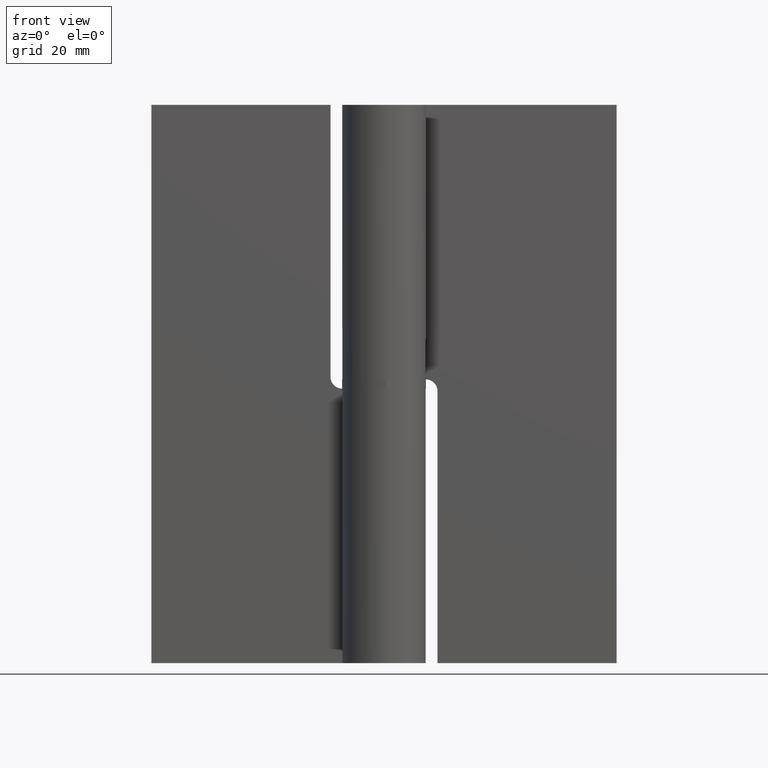
[diagram: clean part render]
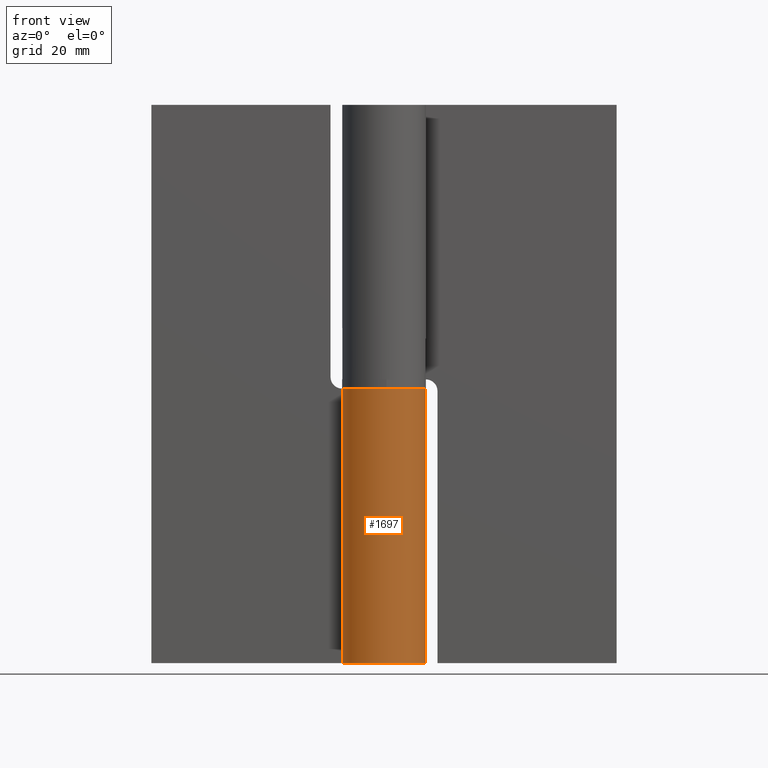
[diagram: same view with one face highlighted and labeled with its STEP entity id]
A machine part, front view. The second image highlights one B-rep face of the part: STEP entity #1697.
In plain terms, the highlighted face is a freeform B-spline surface patch.
Its self-contained STEP definition (entity closure, byte-faithful):
#1371=CARTESIAN_POINT('',(0.0,9.0,59.0));
#1372=VERTEX_POINT('',#1371);
#1413=CARTESIAN_POINT('',(-7.516481889820520,4.950000000000000,59.0));
#1414=VERTEX_POINT('',#1413);
#1420=CARTESIAN_POINT('',(0.0,9.0,59.0));
#1421=CARTESIAN_POINT('',(7.011576975452232,9.000000000000002,59.0));
#1422=CARTESIAN_POINT('',(8.726614701295084,2.201407698528492,59.0));
#1423=CARTESIAN_POINT('',(10.441652427137939,-4.597184602943016,59.0));
#1424=CARTESIAN_POINT('',(4.269074841227313,-7.923067587746552,59.0));
#1425=CARTESIAN_POINT('',(-1.903502744683314,-11.248950572550093,59.0));
#1426=CARTESIAN_POINT('',(-6.638175985501288,-6.077385917112224,59.0));
#1427=CARTESIAN_POINT('',(-11.372849226319255,-0.905821261674360,59.0));
#1428=CARTESIAN_POINT('',(-7.516481889820526,4.950000000000005,59.0));
#1436=(BOUNDED_CURVE()B_SPLINE_CURVE(2,(#1420,#1421,#1422,#1423,#1424,#1425,#1426,#1427,#1428),.UNSPECIFIED.,.F.,.U.)B_SPLINE_CURVE_WITH_KNOTS((3,2,2,2,3),(0.0,0.250000000000000,0.500000000000000,0.750000000000000,1.0),.UNSPECIFIED.)CURVE()GEOMETRIC_REPRESENTATION_ITEM()RATIONAL_B_SPLINE_CURVE((1.0,0.788860207955774,1.0,0.788860207955774,1.0,0.788860207955774,1.0,0.788860207955774,1.0))REPRESENTATION_ITEM(''));
#1437=EDGE_CURVE('',#1372,#1414,#1436,.T.);
#1529=CARTESIAN_POINT('',(0.0,9.0,0.0));
#1530=VERTEX_POINT('',#1529);
#1536=CARTESIAN_POINT('',(-7.516481889820520,4.950000000000000,0.0));
#1537=VERTEX_POINT('',#1536);
#1538=CARTESIAN_POINT('',(0.0,9.0,0.0));
#1539=CARTESIAN_POINT('',(7.011576975452233,9.0,0.0));
#1540=CARTESIAN_POINT('',(8.726614701295084,2.201407698528493,0.0));
#1541=CARTESIAN_POINT('',(10.441652427137935,-4.597184602943015,0.0));
#1542=CARTESIAN_POINT('',(4.269074841227313,-7.923067587746552,0.0));
#1543=CARTESIAN_POINT('',(-1.903502744683306,-11.248950572550088,0.0));
#1544=CARTESIAN_POINT('',(-6.638175985501282,-6.077385917112231,0.0));
#1545=CARTESIAN_POINT('',(-11.372849226319254,-0.905821261674372,0.0));
#1546=CARTESIAN_POINT('',(-7.516481889820531,4.949999999999997,0.0));
#1554=(BOUNDED_CURVE()B_SPLINE_CURVE(2,(#1538,#1539,#1540,#1541,#1542,#1543,#1544,#1545,#1546),.UNSPECIFIED.,.F.,.U.)B_SPLINE_CURVE_WITH_KNOTS((3,2,2,2,3),(0.0,0.250000000000000,0.500000000000000,0.750000000000000,1.0),.UNSPECIFIED.)CURVE()GEOMETRIC_REPRESENTATION_ITEM()RATIONAL_B_SPLINE_CURVE((1.0,0.788860207955774,1.0,0.788860207955774,1.0,0.788860207955774,1.0,0.788860207955774,1.0))REPRESENTATION_ITEM(''));
#1555=EDGE_CURVE('',#1530,#1537,#1554,.T.);
#1654=CARTESIAN_POINT('',(-7.516481889820520,4.950000000000000,0.0));
#1655=CARTESIAN_POINT('',(-7.516481889820520,4.950000000000000,59.0));
#1656=QUASI_UNIFORM_CURVE('',1,(#1654,#1655),.UNSPECIFIED.,.F.,.U.);
#1657=EDGE_CURVE('',#1537,#1414,#1656,.T.);
#1665=CARTESIAN_POINT('',(-0.078538819485358,8.999657307577538,-1.475000000000001));
#1666=CARTESIAN_POINT('',(-0.078538819485358,8.999657307577538,60.511875000000011));
#1667=CARTESIAN_POINT('',(11.101451958377293,9.097223608997838,-1.475000000000001));
#1668=CARTESIAN_POINT('',(11.101451958377293,9.097223608997838,60.511875000000011));
#1669=CARTESIAN_POINT('',(8.808734269191723,-1.845589492483990,-1.475000000000001));
#1670=CARTESIAN_POINT('',(8.808734269191723,-1.845589492483990,60.511875000000011));
#1671=CARTESIAN_POINT('',(6.516016580006151,-12.788402593965818,-1.475000000000001));
#1672=CARTESIAN_POINT('',(6.516016580006151,-12.788402593965818,60.511875000000011));
#1673=CARTESIAN_POINT('',(-3.684530830734830,-8.211226008177126,-1.475000000000001));
#1674=CARTESIAN_POINT('',(-3.684530830734830,-8.211226008177126,60.511875000000011));
#1675=CARTESIAN_POINT('',(-13.885078241475812,-3.634049422388435,-1.475000000000001));
#1676=CARTESIAN_POINT('',(-13.885078241475812,-3.634049422388435,60.511875000000011));
#1677=CARTESIAN_POINT('',(-7.234711745554958,5.353405080762064,-1.475000000000001));
#1678=CARTESIAN_POINT('',(-7.234711745554958,5.353405080762064,60.511875000000011));
#1686=(BOUNDED_SURFACE()B_SPLINE_SURFACE(1,2,((#1665,#1667,#1669,#1671,#1673,#1675,#1677),(#1666,#1668,#1670,#1672,#1674,#1676,#1678)),.UNSPECIFIED.,.F.,.F.,.U.)B_SPLINE_SURFACE_WITH_KNOTS((2,2),(3,2,2,3),(0.0,61.986875000000012),(0.0,17.235435887094710,34.470871774189433,51.706307661284143),.UNSPECIFIED.)GEOMETRIC_REPRESENTATION_ITEM()RATIONAL_B_SPLINE_SURFACE(((1.0,0.627057105746662,1.0,0.627057105746662,1.0,0.627057105746662,1.0),(1.0,0.627057105746662,1.0,0.627057105746662,1.0,0.627057105746662,1.0)))REPRESENTATION_ITEM('')SURFACE());
#1687=CARTESIAN_POINT('',(0.0,9.0,0.0));
#1688=CARTESIAN_POINT('',(0.0,9.0,59.0));
#1689=QUASI_UNIFORM_CURVE('',1,(#1687,#1688),.UNSPECIFIED.,.F.,.U.);
#1690=EDGE_CURVE('',#1530,#1372,#1689,.T.);
#1691=ORIENTED_EDGE('',*,*,#1690,.T.);
#1692=ORIENTED_EDGE('',*,*,#1437,.T.);
#1693=ORIENTED_EDGE('',*,*,#1657,.F.);
#1694=ORIENTED_EDGE('',*,*,#1555,.F.);
#1695=EDGE_LOOP('',(#1691,#1692,#1693,#1694));
#1696=FACE_OUTER_BOUND('',#1695,.T.);
#1697=ADVANCED_FACE('',(#1696),#1686,.T.);